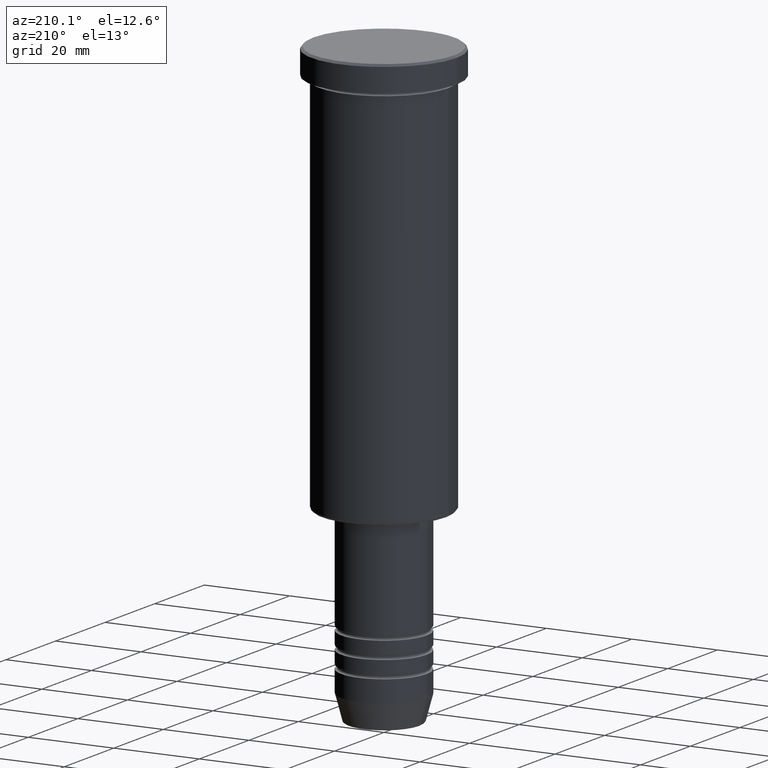
[diagram: clean part render]
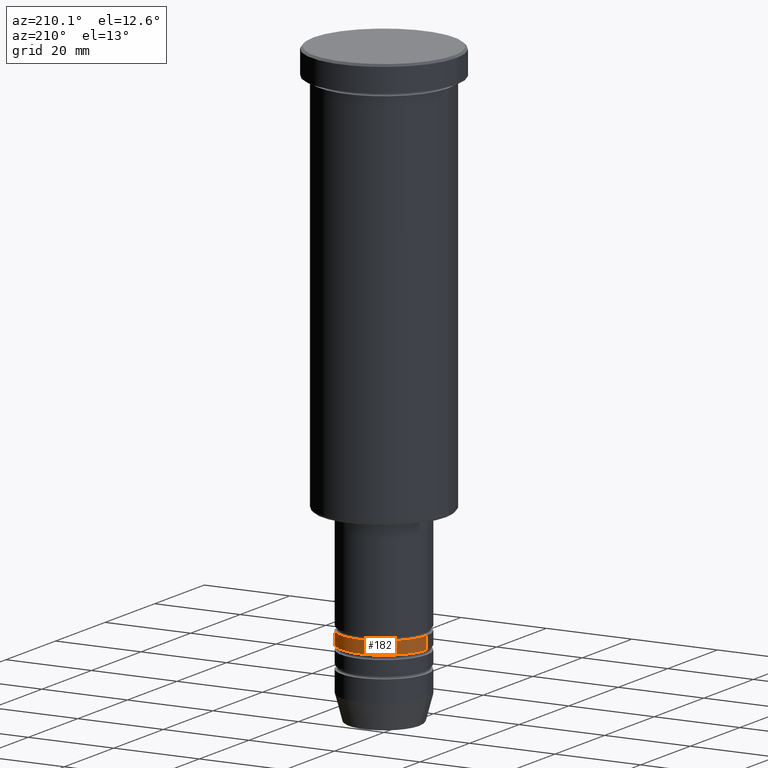
[diagram: same view with one face highlighted and labeled with its STEP entity id]
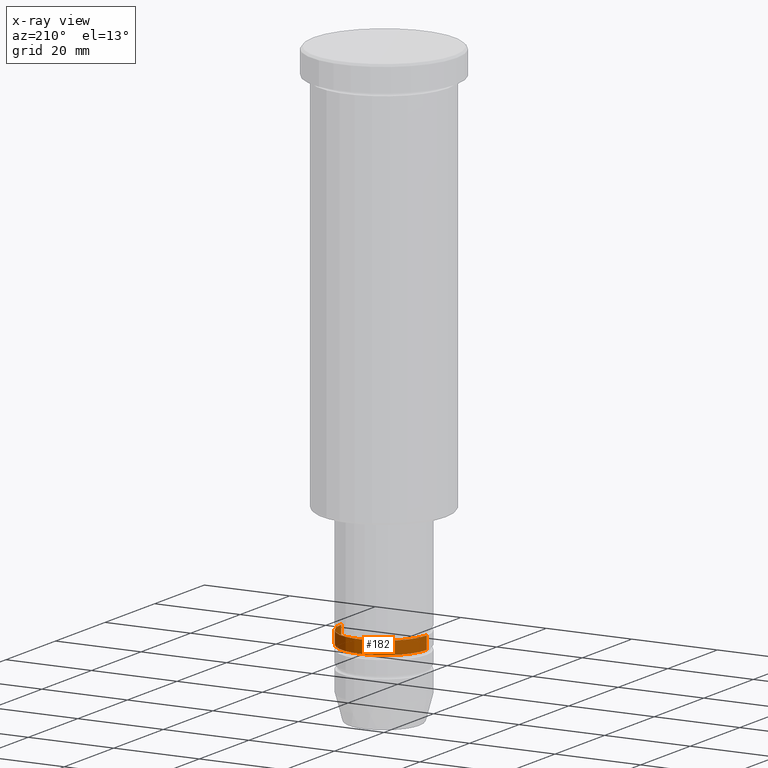
[diagram: x-ray of the same camera — body ghosted, the highlighted face saturated]
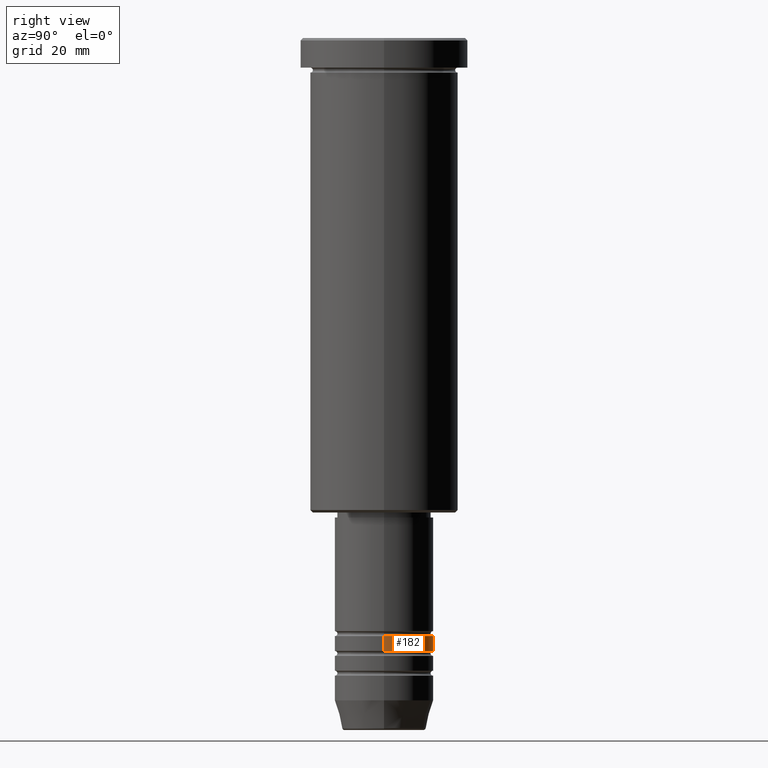
[diagram: same view with one face highlighted and labeled with its STEP entity id]
A machine part, auxiliary view. The second image highlights one B-rep face of the part: STEP entity #182.
The next image is the same camera in x-ray: the body ghosted, the highlighted face saturated — about 0% of this face is hidden behind the body in this view.
A second angle (right view) of the same face is appended — the face is thin or edge-on in the first view.
In plain terms, the highlighted cylindrical surface (partial cylindrical patch) has radius 10 mm, axis along (-0, -0, 1).
Its self-contained STEP definition (entity closure, byte-faithful):
#16 = ORIENTED_EDGE ( 'NONE', *, *, #563, .T. ) ;
#21 = ORIENTED_EDGE ( 'NONE', *, *, #708, .F. ) ;
#59 = ORIENTED_EDGE ( 'NONE', *, *, #705, .F. ) ;
#131 = DIRECTION ( 'NONE',  ( 1.000000000000000000, 0.000000000000000000, 0.000000000000000000 ) ) ;
#132 = DIRECTION ( 'NONE',  ( 1.000000000000000000, 0.000000000000000000, 0.000000000000000000 ) ) ;
#182 = ADVANCED_FACE ( 'NONE', ( #482 ), #276, .T. ) ;
#214 = CARTESIAN_POINT ( 'NONE',  ( -10.00000000000000178, 1.224646799147353454E-15, -124.0000000000000000 ) ) ;
#257 = VERTEX_POINT ( 'NONE', #628 ) ;
#267 = LINE ( 'NONE', #1070, #1107 ) ;
#276 = CYLINDRICAL_SURFACE ( 'NONE', #1106, 10.00000000000000178 ) ;
#308 = CARTESIAN_POINT ( 'NONE',  ( 0.000000000000000000, 0.000000000000000000, -124.0000000000000000 ) ) ;
#311 = DIRECTION ( 'NONE',  ( -0.000000000000000000, -0.000000000000000000, 1.000000000000000000 ) ) ;
#314 = CARTESIAN_POINT ( 'NONE',  ( 10.00000000000000000, 0.000000000000000000, -121.0000000000000000 ) ) ;
#333 = DIRECTION ( 'NONE',  ( 1.000000000000000000, 0.000000000000000000, 0.000000000000000000 ) ) ;
#417 = DIRECTION ( 'NONE',  ( -0.000000000000000000, -0.000000000000000000, 1.000000000000000000 ) ) ;
#482 = FACE_OUTER_BOUND ( 'NONE', #860, .T. ) ;
#516 = EDGE_CURVE ( 'NONE', #1126, #1066, #789, .T. ) ;
#532 = AXIS2_PLACEMENT_3D ( 'NONE', #809, #1178, #333 ) ;
#563 = EDGE_CURVE ( 'NONE', #1066, #257, #853, .T. ) ;
#628 = CARTESIAN_POINT ( 'NONE',  ( -10.00000000000000000, 1.224646799147353256E-15, -121.0000000000000000 ) ) ;
#638 = CARTESIAN_POINT ( 'NONE',  ( 0.000000000000000000, 0.000000000000000000, 0.000000000000000000 ) ) ;
#665 = DIRECTION ( 'NONE',  ( -0.000000000000000000, -0.000000000000000000, 1.000000000000000000 ) ) ;
#705 = EDGE_CURVE ( 'NONE', #1031, #257, #1011, .T. ) ;
#708 = EDGE_CURVE ( 'NONE', #1126, #1031, #267, .T. ) ;
#725 = VECTOR ( 'NONE', #311, 1000.000000000000000 ) ;
#774 = DIRECTION ( 'NONE',  ( -0.000000000000000000, -0.000000000000000000, 1.000000000000000000 ) ) ;
#789 = CIRCLE ( 'NONE', #954, 10.00000000000000178 ) ;
#809 = CARTESIAN_POINT ( 'NONE',  ( 0.000000000000000000, 0.000000000000000000, -121.0000000000000000 ) ) ;
#853 = LINE ( 'NONE', #870, #725 ) ;
#860 = EDGE_LOOP ( 'NONE', ( #999, #16, #59, #21 ) ) ;
#870 = CARTESIAN_POINT ( 'NONE',  ( -10.00000000000000178, 1.224646799147353454E-15, 0.000000000000000000 ) ) ;
#954 = AXIS2_PLACEMENT_3D ( 'NONE', #308, #774, #132 ) ;
#999 = ORIENTED_EDGE ( 'NONE', *, *, #516, .T. ) ;
#1011 = CIRCLE ( 'NONE', #532, 10.00000000000000000 ) ;
#1031 = VERTEX_POINT ( 'NONE', #314 ) ;
#1066 = VERTEX_POINT ( 'NONE', #214 ) ;
#1070 = CARTESIAN_POINT ( 'NONE',  ( 10.00000000000000178, 0.000000000000000000, 0.000000000000000000 ) ) ;
#1106 = AXIS2_PLACEMENT_3D ( 'NONE', #638, #665, #131 ) ;
#1107 = VECTOR ( 'NONE', #417, 1000.000000000000000 ) ;
#1126 = VERTEX_POINT ( 'NONE', #1144 ) ;
#1144 = CARTESIAN_POINT ( 'NONE',  ( 10.00000000000000178, 0.000000000000000000, -124.0000000000000000 ) ) ;
#1178 = DIRECTION ( 'NONE',  ( -0.000000000000000000, -0.000000000000000000, 1.000000000000000000 ) ) ;